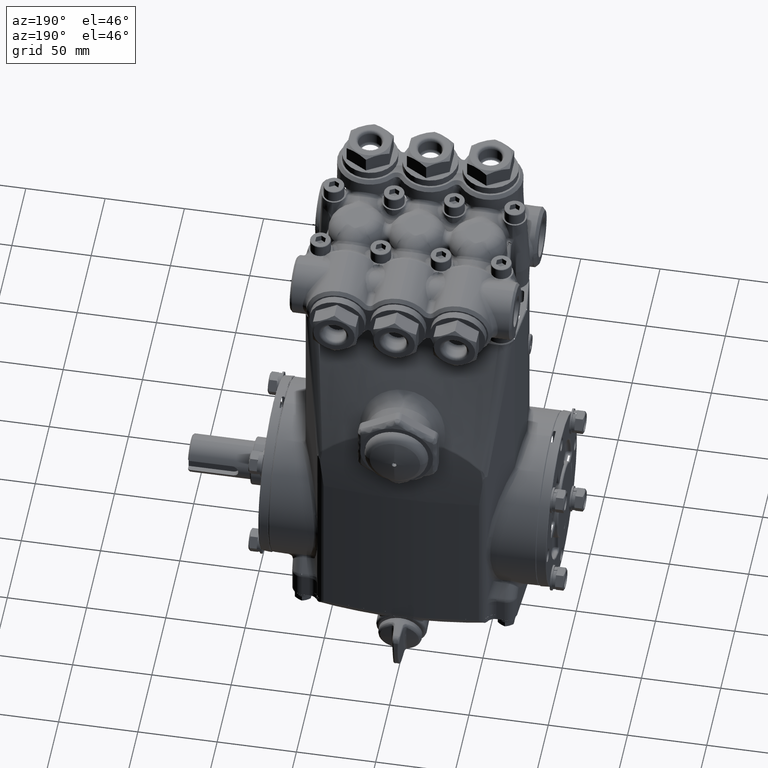
[diagram: clean part render]
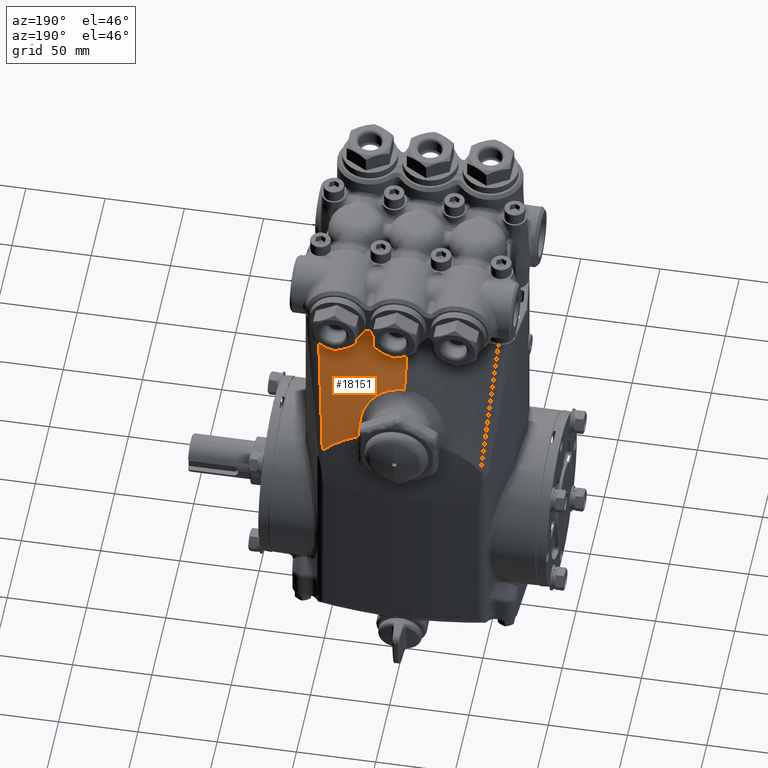
[diagram: same view with one face highlighted and labeled with its STEP entity id]
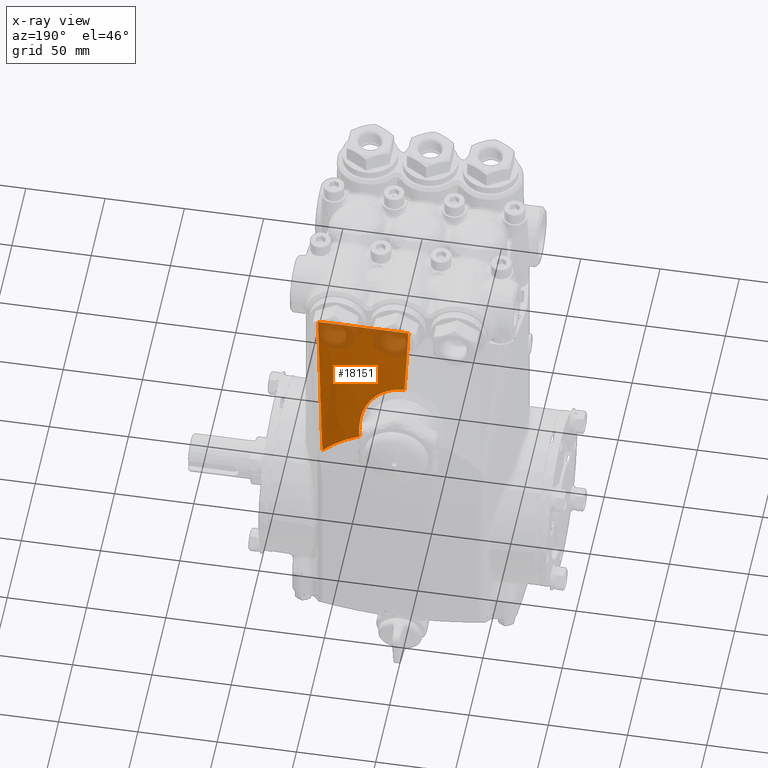
[diagram: x-ray of the same camera — body ghosted, the highlighted face saturated]
A machine part, auxiliary view. The second image highlights one B-rep face of the part: STEP entity #18151.
The next image is the same camera in x-ray: the body ghosted, the highlighted face saturated — about 22% of this face is hidden behind the body in this view.
In plain terms, the highlighted face is a freeform B-spline surface patch.
Its self-contained STEP definition (entity closure, byte-faithful):
#173 = EDGE_CURVE ( 'NONE', #83808, #99880, #31209, .T. ) ;
#1045 = CARTESIAN_POINT ( 'NONE',  ( 2.138791567245843517, 1.934550967561894375, 4.139253177447304033 ) ) ;
#2403 = CARTESIAN_POINT ( 'NONE',  ( 1.815914156972153304, 1.940961843331305614, 4.336021358452839536 ) ) ;
#2670 = ORIENTED_EDGE ( 'NONE', *, *, #104055, .F. ) ;
#3092 = CARTESIAN_POINT ( 'NONE',  ( 2.226762278537175899, 1.351072223210090240, 6.345969643013950723 ) ) ;
#3334 = CARTESIAN_POINT ( 'NONE',  ( 1.914390275436746114, 1.303141500361982841, 6.522115262681796644 ) ) ;
#3484 = CARTESIAN_POINT ( 'NONE',  ( 0.7046425184321145618, 1.920170747935553202, 4.813691399257461256 ) ) ;
#3773 = CARTESIAN_POINT ( 'NONE',  ( -0.4139447099412282283, 1.299212598425195875, 6.535433070866140781 ) ) ;
#4014 = CARTESIAN_POINT ( 'NONE',  ( 1.929086690002406623, 1.303150017702783936, 6.522054915109928963 ) ) ;
#4171 = CARTESIAN_POINT ( 'NONE',  ( 0.08132019185828821828, 1.843391827334499578, 5.083065750488912293 ) ) ;
#4470 = CARTESIAN_POINT ( 'NONE',  ( 1.413377725799104034, 1.623373408866208623, 5.537438881358075271 ) ) ;
#4718 = CARTESIAN_POINT ( 'NONE',  ( 2.011344609030261132, 1.303177107807405699, 6.521691956525321743 ) ) ;
#4878 = CARTESIAN_POINT ( 'NONE',  ( 0.6011664579266333686, 1.895645411747802767, 4.899716452204509132 ) ) ;
#5175 = CARTESIAN_POINT ( 'NONE',  ( 1.138347952338380820, 1.299212598425195875, 6.535433070866143446 ) ) ;
#5378 = CARTESIAN_POINT ( 'NONE',  ( 1.386629650403558456, 2.265946635969432688, 3.521905276535707507 ) ) ;
#5429 = CARTESIAN_POINT ( 'NONE',  ( 2.072183131936921274, 1.303234616926000733, 6.521305273683159598 ) ) ;
#5881 = CARTESIAN_POINT ( 'NONE',  ( -1.075040638229151746, 2.276030985658306971, 3.676614831474853240 ) ) ;
#6071 = B_SPLINE_CURVE_WITH_KNOTS ( 'NONE', 3,
 ( #77937, #98972, #120702, #24709 ),
 .UNSPECIFIED., .F., .F.,
 ( 4, 4 ),
 ( 0.000000000000000000, 1.000000000000000000 ),
 .UNSPECIFIED. ) ;
#6080 = CARTESIAN_POINT ( 'NONE',  ( 1.905459695143534526, 2.251777812233334952, 3.090971539333773332 ) ) ;
#6133 = CARTESIAN_POINT ( 'NONE',  ( 2.075517947301391608, 1.303234203366481436, 6.521297421899155289 ) ) ;
#6289 = CARTESIAN_POINT ( 'NONE',  ( 1.059611432877180404, 2.132919541077613612, 4.104215309753711516 ) ) ;
#6305 = VERTEX_POINT ( 'NONE', #114997 ) ;
#6584 = CARTESIAN_POINT ( 'NONE',  ( -1.514041149352872040, 2.268035144051591345, 3.427713295126958215 ) ) ;
#6781 = CARTESIAN_POINT ( 'NONE',  ( 1.838112334298227291, 2.254110649831492008, 3.160691993887410955 ) ) ;
#7982 = CARTESIAN_POINT ( 'NONE',  ( -2.064016187563357363, 1.936334572335544513, 4.193623449363257372 ) ) ;
#11581 = CARTESIAN_POINT ( 'NONE',  ( 1.987364774915985066, 2.192373398771772397, 3.229997992615773139 ) ) ;
#11597 = B_SPLINE_CURVE_WITH_KNOTS ( 'NONE', 3,
 ( #55663, #56344, #11581, #109599, #12275, #99093, #130664, #77381, #65506, #3092, #118791, #54308 ),
 .UNSPECIFIED., .F., .F.,
 ( 4, 2, 2, 2, 2, 4 ),
 ( 0.005111012483131041097, 0.09547011241999034392, 0.4258638922745208166, 0.7562576721290511506, 0.9214545620563164841, 0.9958867908275451653 ),
 .UNSPECIFIED. ) ;
#12275 = CARTESIAN_POINT ( 'NONE',  ( 2.056971949321643844, 1.955863575897020867, 4.116183297647427075 ) ) ;
#12475 = CARTESIAN_POINT ( 'NONE',  ( 7.856720868780860474E-16, 1.842770180353480391, 5.085202755651217821 ) ) ;
#12870 = ORIENTED_EDGE ( 'NONE', *, *, #173, .F. ) ;
#12947 = CARTESIAN_POINT ( 'NONE',  ( 1.740752549347811096, 2.261836465784360151, 3.236315502246188025 ) ) ;
#12994 = ORIENTED_EDGE ( 'NONE', *, *, #42766, .F. ) ;
#13146 = CARTESIAN_POINT ( 'NONE',  ( -6.747251032203251776E-16, 1.524112451085763542, 5.935392394274551897 ) ) ;
#13603 = CARTESIAN_POINT ( 'NONE',  ( 2.348620269737569544, 1.615989862535865962, 5.310154389002058828 ) ) ;
#13704 = EDGE_LOOP ( 'NONE', ( #81824, #109936, #32338, #111534, #12994, #2670, #12870 ) ) ;
#13852 = CARTESIAN_POINT ( 'NONE',  ( 1.874686454365268595, 1.303108475886013418, 6.522297875013515878 ) ) ;
#14286 = CARTESIAN_POINT ( 'NONE',  ( 1.558289455644661370, 1.945165731996254532, 4.465837177507690825 ) ) ;
#14536 = CARTESIAN_POINT ( 'NONE',  ( 1.988250157175251331, 1.303163174898845478, 6.521813249816738711 ) ) ;
#14690 = CARTESIAN_POINT ( 'NONE',  ( 7.856720868780860474E-16, 1.842770180353480391, 5.085202755651217821 ) ) ;
#14978 = CARTESIAN_POINT ( 'NONE',  ( 0.1996451555749676476, 2.283281142087087545, 3.903651472290499136 ) ) ;
#15221 = CARTESIAN_POINT ( 'NONE',  ( 2.040988433105608735, 1.303208087514445834, 6.521476013895274093 ) ) ;
#15378 = CARTESIAN_POINT ( 'NONE',  ( 0.5246777311897342644, 1.881737060599490086, 4.948639182549783300 ) ) ;
#15396 = EDGE_CURVE ( 'NONE', #117559, #108811, #11597, .T. ) ;
#15680 = CARTESIAN_POINT ( 'NONE',  ( -0.7065648037781333546, 1.953379148812216082, 4.721955145553740962 ) ) ;
#16076 = CARTESIAN_POINT ( 'NONE',  ( 0.9412549769743565609, 2.010370260216432836, 4.502105003687284501 ) ) ;
#16382 = CARTESIAN_POINT ( 'NONE',  ( -0.7154840230876414742, 1.626295873618706089, 5.628694108209940872 ) ) ;
#16577 = CARTESIAN_POINT ( 'NONE',  ( 1.130691403279651341, 2.270550212597886919, 3.664058202181445623 ) ) ;
#16794 = CARTESIAN_POINT ( 'NONE',  ( 0.9599590756061289198, 2.021880957268129997, 4.463231149671288200 ) ) ;
#17095 = CARTESIAN_POINT ( 'NONE',  ( -1.413596656458246281, 1.623367893248890415, 5.537266598726781730 ) ) ;
#17788 = CARTESIAN_POINT ( 'NONE',  ( -2.069723549706143917, 1.299212598425195875, 6.535433070866140781 ) ) ;
#17988 = CARTESIAN_POINT ( 'NONE',  ( 1.467571004497538523, 2.264214088644782574, 3.468564571426206555 ) ) ;
#18151 = ADVANCED_FACE ( 'NONE', ( #109586 ), #60251, .T. ) ;
#18565 = CARTESIAN_POINT ( 'NONE',  ( 0.5634469790333801464, 1.303876253747656699, 6.522993007173084834 ) ) ;
#22066 = CARTESIAN_POINT ( 'NONE',  ( 1.690339794217348590, 1.302815946655424995, 6.523803629161010420 ) ) ;
#22790 = CARTESIAN_POINT ( 'NONE',  ( 2.276695904676759863, 1.299212598425195875, 6.535433070866140781 ) ) ;
#23717 = CARTESIAN_POINT ( 'NONE',  ( 2.221572899584750349, 1.303234224250594986, 6.520944700123296300 ) ) ;
#24709 = CARTESIAN_POINT ( 'NONE',  ( 1.690339794217348590, 1.302815946655424995, 6.523803629161010420 ) ) ;
#24833 = CARTESIAN_POINT ( 'NONE',  ( 2.069723549706145693, 1.299212598425195875, 6.535433070866140781 ) ) ;
#25076 = CARTESIAN_POINT ( 'NONE',  ( 1.904906332796902468, 1.303136809128786489, 6.522154407171851354 ) ) ;
#25521 = CARTESIAN_POINT ( 'NONE',  ( 1.094475627111260341, 1.950449930780007168, 4.630335524700627481 ) ) ;
#25776 = CARTESIAN_POINT ( 'NONE',  ( 1.986261469908715327, 1.303164192265223731, 6.521821532394173282 ) ) ;
#26230 = CARTESIAN_POINT ( 'NONE',  ( 0.09980670523800924676, 1.955382665598911718, 4.784819064919673792 ) ) ;
#26628 = CARTESIAN_POINT ( 'NONE',  ( 0.2666601076433642858, 1.851523558427996097, 5.054693099136969181 ) ) ;
#26920 = CARTESIAN_POINT ( 'NONE',  ( -0.7948310577097567053, 2.279523450189995692, 3.785796457838987550 ) ) ;
#27617 = CARTESIAN_POINT ( 'NONE',  ( 0.2069723549706150856, 1.299212598425195875, 6.535433070866140781 ) ) ;
#28320 = CARTESIAN_POINT ( 'NONE',  ( 0.5979691708398126027, 2.281413911206460199, 3.845027360530513416 ) ) ;
#30387 = CARTESIAN_POINT ( 'NONE',  ( -2.170356046120057947, 1.617773585380370305, 5.364528260114698632 ) ) ;
#31209 = B_SPLINE_CURVE_WITH_KNOTS ( 'NONE', 3,
 ( #112442, #102630, #18565, #38888 ),
 .UNSPECIFIED., .F., .F.,
 ( 4, 4 ),
 ( 0.01406537931565059185, 0.05700002236171951980 ),
 .UNSPECIFIED. ) ;
#32338 = ORIENTED_EDGE ( 'NONE', *, *, #15396, .F. ) ;
#32622 = CARTESIAN_POINT ( 'NONE',  ( 2.078524289917963674, 2.249544390757206358, 2.859597025273892257 ) ) ;
#34666 = CARTESIAN_POINT ( 'NONE',  ( 1.814750563133107342, 2.259561088856864242, 3.166239998444151826 ) ) ;
#35574 = CARTESIAN_POINT ( 'NONE',  ( 1.979249540742124003, 1.303167198760140089, 6.521850426477739937 ) ) ;
#36021 = CARTESIAN_POINT ( 'NONE',  ( -1.017659377637137652, 1.625244951225160328, 5.595808111142073216 ) ) ;
#36263 = CARTESIAN_POINT ( 'NONE',  ( 2.073291619848125045, 1.303234372079689285, 6.521302652814378042 ) ) ;
#36718 = CARTESIAN_POINT ( 'NONE',  ( 0.6209170649118443963, 1.299212598425195875, 6.535433070866142558 ) ) ;
#36969 = CARTESIAN_POINT ( 'NONE',  ( 1.857470453640842400, 1.303069157038817760, 6.522404842360860933 ) ) ;
#37130 = CARTESIAN_POINT ( 'NONE',  ( 0.7980945044449194725, 1.947650998695895863, 4.717654648442444199 ) ) ;
#37428 = CARTESIAN_POINT ( 'NONE',  ( 0.2045299551720659303, 1.627235446312492950, 5.658172538007593566 ) ) ;
#37675 = CARTESIAN_POINT ( 'NONE',  ( 2.060574785541025911, 1.303222618714695358, 6.521350721251032212 ) ) ;
#37828 = CARTESIAN_POINT ( 'NONE',  ( 1.065664247758600913, 2.159866697530362867, 4.022029125482110778 ) ) ;
#38120 = CARTESIAN_POINT ( 'NONE',  ( -1.117245514301969278, 1.624818727502899574, 5.582493657735712489 ) ) ;
#38365 = CARTESIAN_POINT ( 'NONE',  ( 1.984310192827091646, 1.303165190867774381, 6.521829585147287389 ) ) ;
#38811 = CARTESIAN_POINT ( 'NONE',  ( 0.7899098052399405878, 2.279574444770267050, 3.787396209038501382 ) ) ;
#38888 = CARTESIAN_POINT ( 'NONE',  ( 0.000000000000000000, 1.303874827123127744, 6.522994084420179028 ) ) ;
#41577 = CARTESIAN_POINT ( 'NONE',  ( -1.903513742914309637, 1.939502949712582192, 4.290982414971016290 ) ) ;
#41908 = B_SPLINE_CURVE_WITH_KNOTS ( 'NONE', 3,
 ( #97922, #76214, #13146, #75536, #88085, #74848, #12475 ),
 .UNSPECIFIED., .F., .F.,
 ( 4, 3, 4 ),
 ( 0.0003374136303950777760, 0.02424589558524162941, 0.03933821924561142075 ),
 .UNSPECIFIED. ) ;
#42766 = EDGE_CURVE ( 'NONE', #70786, #6305, #48443, .T. ) ;
#45151 = CARTESIAN_POINT ( 'NONE',  ( 1.966237372220838386, 1.299212598425195875, 6.535433070866140781 ) ) ;
#45835 = CARTESIAN_POINT ( 'NONE',  ( 2.018096309787731801, 2.252220152130243402, 2.941163230737885659 ) ) ;
#46527 = CARTESIAN_POINT ( 'NONE',  ( -0.8168699658248899098, 1.625982882346795888, 5.618887533190423333 ) ) ;
#46765 = CARTESIAN_POINT ( 'NONE',  ( 2.188553502826026786, 1.303158118626795314, 6.521015341337152549 ) ) ;
#46904 = CARTESIAN_POINT ( 'NONE',  ( 7.856720868780860474E-16, 1.842770180353480391, 5.085202755651217821 ) ) ;
#47220 = CARTESIAN_POINT ( 'NONE',  ( 1.016220453720929395, 1.625264024435116639, 5.596403073865150013 ) ) ;
#47463 = CARTESIAN_POINT ( 'NONE',  ( 1.947003840846343259, 1.303163007286271657, 6.521982092662439889 ) ) ;
#47926 = CARTESIAN_POINT ( 'NONE',  ( -0.2069723549706137533, 1.299212598425195875, 6.535433070866140781 ) ) ;
#48443 = B_SPLINE_CURVE_WITH_KNOTS ( 'NONE', 3,
 ( #14690, #91047, #57426, #4171, #101557, #26628, #111355, #15378, #4878, #3484, #133119, #37130, #79831, #122603, #112061, #16076, #16794, #133815, #59523, #6289, #37828, #80532, #109974, #70033 ),
 .UNSPECIFIED., .F., .F.,
 ( 4, 2, 2, 2, 2, 2, 2, 2, 2, 2, 2, 4 ),
 ( 0.000000000000000000, 0.01562403962243399079, 0.08124910364760508374, 0.2124992316979472662, 0.3437493597482894625, 0.4093744237734605051, 0.4749994877986315478, 0.5406245518238025349, 0.6062496158489736331, 0.7374997438993158294, 0.8687498719496578037, 1.000000000000000000 ),
 .UNSPECIFIED. ) ;
#48623 = CARTESIAN_POINT ( 'NONE',  ( -0.2034956251185647269, 2.283458183139874809, 3.909217981057091507 ) ) ;
#48823 = CARTESIAN_POINT ( 'NONE',  ( 1.041533217244492660, 2.271803740172789077, 3.703202409397690520 ) ) ;
#48875 = CARTESIAN_POINT ( 'NONE',  ( 1.988858789484086342, 1.303162962733967589, 6.521810613207049911 ) ) ;
#49318 = CARTESIAN_POINT ( 'NONE',  ( -1.096143076265560623, 1.950424856580603272, 4.629554244605282420 ) ) ;
#50700 = CARTESIAN_POINT ( 'NONE',  ( -2.078524289917953460, 2.249544390757207690, 2.859597025273891369 ) ) ;
#54308 = CARTESIAN_POINT ( 'NONE',  ( 2.242889468066143088, 1.303183471566980778, 6.520931740362723161 ) ) ;
#55663 = CARTESIAN_POINT ( 'NONE',  ( 1.969283401333570938, 2.249277433038161078, 3.017030524756072474 ) ) ;
#56333 = CARTESIAN_POINT ( 'NONE',  ( 2.259486824703954788, 1.616881782993545125, 5.337343124156722851 ) ) ;
#56344 = CARTESIAN_POINT ( 'NONE',  ( 1.978388578950748711, 2.220830290808069041, 3.123495715211229484 ) ) ;
#57018 = CARTESIAN_POINT ( 'NONE',  ( -1.608532942960900547, 1.622153446967327772, 5.499526478953079334 ) ) ;
#57270 = CARTESIAN_POINT ( 'NONE',  ( 1.902730317229023305, 1.303135947009208762, 6.522163432569507258 ) ) ;
#57426 = CARTESIAN_POINT ( 'NONE',  ( 0.02254338807625001079, 1.842835449954973503, 5.084990788881945001 ) ) ;
#57715 = CARTESIAN_POINT ( 'NONE',  ( -0.7244032423971497048, 1.299212598425195875, 6.535433070866140781 ) ) ;
#57957 = CARTESIAN_POINT ( 'NONE',  ( 2.157974127490696503, 1.303170085031228220, 6.521101914974519076 ) ) ;
#58412 = CARTESIAN_POINT ( 'NONE',  ( 0.1034861774853078620, 1.299212598425195875, 6.535433070866140781 ) ) ;
#58652 = CARTESIAN_POINT ( 'NONE',  ( 2.109887356808207048, 1.303279563280243414, 6.521220493288224063 ) ) ;
#59109 = CARTESIAN_POINT ( 'NONE',  ( -0.9832545832052707047, 2.277309656825089235, 3.716558191693936308 ) ) ;
#59312 = CARTESIAN_POINT ( 'NONE',  ( 1.217594213962654992, 2.269128931642199642, 3.619967092695878907 ) ) ;
#59523 = CARTESIAN_POINT ( 'NONE',  ( 1.030928400658887245, 2.081659327104598667, 4.265729520778678285 ) ) ;
#59822 = CARTESIAN_POINT ( 'NONE',  ( -1.448806484794300076, 1.299212598425195875, 6.535433070866140781 ) ) ;
#60039 = B_SPLINE_CURVE_WITH_KNOTS ( 'NONE', 3,
 ( #48823, #16577, #59312, #5378, #17988, #81724, #102053, #6781, #6080, #91537 ),
 .UNSPECIFIED., .F., .F.,
 ( 4, 2, 2, 2, 4 ),
 ( 0.004531225126507739884, 0.01195000812040867937, 0.01936879111430962752, 0.02678757410821057394, 0.03420635710211152036 ),
 .UNSPECIFIED. ) ;
#60251 = B_SPLINE_SURFACE_WITH_KNOTS ( 'NONE', 3, 3, ( 
 ( #32622, #118779, #13603, #119463 ),
 ( #45835, #1045, #56333, #78048 ),
 ( #75325, #98399, #86523, #22790 ),
 ( #34666, #65497, #108911, #24833 ),
 ( #12947, #2403, #120813, #45151 ),
 ( #110254, #14286, #99083, #100467 ),
 ( #89241, #101159, #4470, #132716 ),
 ( #121497, #25521, #122888, #5175 ),
 ( #79432, #134795, #47220, #132011 ),
 ( #38811, #99780, #89941, #68226 ),
 ( #28320, #92027, #91335, #36718 ),
 ( #110949, #90634, #133409, #122208 ),
 ( #14978, #123592, #37428, #27617 ),
 ( #81524, #26230, #71020, #58412 ),
 ( #48623, #102550, #68919, #47926 ),
 ( #70330, #112363, #111653, #3773 ),
 ( #80123, #15680, #16382, #57715 ),
 ( #26920, #124290, #46527, #69632 ),
 ( #59109, #101858, #36021, #134108 ),
 ( #5881, #49318, #38120, #78739 ),
 ( #80827, #113066, #17095, #59822 ),
 ( #6584, #113772, #57018, #136867 ),
 ( #94108, #41577, #84289, #17788 ),
 ( #106011, #7982, #30387, #115864 ),
 ( #50700, #124978, #84987, #73785 ) ),
 .UNSPECIFIED., .F., .F., .F.,
 ( 4, 2, 2, 2, 2, 1, 2, 2, 2, 2, 2, 2, 4 ),
 ( 4, 4 ),
 ( 0.000000000000000000, 0.06249999999999977796, 0.1249999999999997780, 0.2499999999999997780, 0.3124999999999997780, 0.3749999999999997780, 0.4374999999999998890, 0.4999999999999998890, 0.6249999999999998890, 0.6874999999999997780, 0.7499999999999997780, 0.8749999999999998890, 1.000000000000000000 ),
 ( 0.000000000000000000, 1.000000000000000000 ),
 .UNSPECIFIED. ) ;
#65497 = CARTESIAN_POINT ( 'NONE',  ( 1.899741558657453311, 1.939444925379641971, 4.289304355918147849 ) ) ;
#65506 = CARTESIAN_POINT ( 'NONE',  ( 2.202150233065117924, 1.428197325380847538, 6.064137633037693931 ) ) ;
#67096 = CARTESIAN_POINT ( 'NONE',  ( 2.140198437375403717, 1.303302065660231435, 6.521151207910685699 ) ) ;
#67776 = CARTESIAN_POINT ( 'NONE',  ( 2.027258736567554731, 1.303197684794334732, 6.521576645671452788 ) ) ;
#68226 = CARTESIAN_POINT ( 'NONE',  ( 0.8278894198824591211, 1.299212598425195875, 6.535433070866143446 ) ) ;
#68478 = CARTESIAN_POINT ( 'NONE',  ( 1.751689739780477817, 1.302976663906070698, 6.523246064949240086 ) ) ;
#68919 = CARTESIAN_POINT ( 'NONE',  ( -0.2058134450199307908, 1.627294459996755371, 5.660028040929791615 ) ) ;
#69168 = CARTESIAN_POINT ( 'NONE',  ( 2.201288779018358177, 1.303226110760312695, 6.520983324525448488 ) ) ;
#69632 = CARTESIAN_POINT ( 'NONE',  ( -0.8278894198824566786, 1.299212598425195875, 6.535433070866140781 ) ) ;
#69881 = CARTESIAN_POINT ( 'NONE',  ( 2.069974763193493494, 1.303234748418971467, 6.521310903025320016 ) ) ;
#70033 = CARTESIAN_POINT ( 'NONE',  ( 1.041533217244492660, 2.271803740172789077, 3.703202409397690520 ) ) ;
#70330 = CARTESIAN_POINT ( 'NONE',  ( -0.4024140580146031154, 2.282714137246169894, 3.885816525513271724 ) ) ;
#70786 = VERTEX_POINT ( 'NONE', #46904 ) ;
#71020 = CARTESIAN_POINT ( 'NONE',  ( 0.1016464413616585544, 1.627297632012053574, 5.660126067892908175 ) ) ;
#71554 = EDGE_CURVE ( 'NONE', #87747, #83808, #6071, .T. ) ;
#73785 = CARTESIAN_POINT ( 'NONE',  ( -2.483668259647373144, 1.299212598425195875, 6.535433070866140781 ) ) ;
#74848 = CARTESIAN_POINT ( 'NONE',  ( -7.840713946942983381E-16, 1.773257215420733113, 5.270665689158987810 ) ) ;
#75325 = CARTESIAN_POINT ( 'NONE',  ( 1.953241251208090556, 2.254757105907042813, 3.018792012192400342 ) ) ;
#75536 = CARTESIAN_POINT ( 'NONE',  ( -6.747251032203251776E-16, 1.634231296623841034, 5.641591560323128363 ) ) ;
#76214 = CARTESIAN_POINT ( 'NONE',  ( -4.905913607710590776E-16, 1.413993621865241579, 6.229193234341924956 ) ) ;
#76933 = CARTESIAN_POINT ( 'NONE',  ( 2.239881829340187203, 1.303232487421861485, 6.520879784589456385 ) ) ;
#77381 = CARTESIAN_POINT ( 'NONE',  ( 2.186378929579909869, 1.481371582545127685, 5.869664288253999551 ) ) ;
#77937 = CARTESIAN_POINT ( 'NONE',  ( 1.695594360879107088, 1.302839862579967312, 6.523765088554132063 ) ) ;
#78048 = CARTESIAN_POINT ( 'NONE',  ( 2.380182082162066504, 1.299212598425195875, 6.535433070866140781 ) ) ;
#78291 = CARTESIAN_POINT ( 'NONE',  ( 2.044635832022915878, 1.303205283789568014, 6.521450304741733817 ) ) ;
#78739 = CARTESIAN_POINT ( 'NONE',  ( -1.138347952338378155, 1.299212598425195875, 6.535433070866140781 ) ) ;
#78983 = CARTESIAN_POINT ( 'NONE',  ( 1.999346858728849208, 1.303160528041504174, 6.521763919417264965 ) ) ;
#79432 = CARTESIAN_POINT ( 'NONE',  ( 0.9789378114566406053, 2.277366876454958611, 3.718343079863162703 ) ) ;
#79831 = CARTESIAN_POINT ( 'NONE',  ( 0.8258493691338274489, 1.957406070253898234, 4.683738946589278029 ) ) ;
#80123 = CARTESIAN_POINT ( 'NONE',  ( -0.6976455844686251240, 2.280462424005726074, 3.815216182897540609 ) ) ;
#80373 = CARTESIAN_POINT ( 'NONE',  ( 2.033134597768900154, 1.303204590899394777, 6.521533020874960229 ) ) ;
#80532 = CARTESIAN_POINT ( 'NONE',  ( 1.063363513276622374, 2.214500234496790121, 3.861862252804268092 ) ) ;
#80827 = CARTESIAN_POINT ( 'NONE',  ( -1.343176999786138914, 2.271678482896280382, 3.540933654448064516 ) ) ;
#81524 = CARTESIAN_POINT ( 'NONE',  ( 0.09796696911435995303, 2.283467699185769195, 3.909512061946438966 ) ) ;
#81724 = CARTESIAN_POINT ( 'NONE',  ( 1.622572283600502985, 2.260474850262625068, 3.353590572003123604 ) ) ;
#81824 = ORIENTED_EDGE ( 'NONE', *, *, #71554, .F. ) ;
#83808 = VERTEX_POINT ( 'NONE', #22066 ) ;
#84289 = CARTESIAN_POINT ( 'NONE',  ( -1.986618646310226444, 1.619357774068889144, 5.413207742918578980 ) ) ;
#84987 = CARTESIAN_POINT ( 'NONE',  ( -2.348620269737566879, 1.615989862535866628, 5.310154389002057052 ) ) ;
#86523 = CARTESIAN_POINT ( 'NONE',  ( 2.168877686853869946, 1.617727434252478336, 5.363219384641560339 ) ) ;
#87455 = CARTESIAN_POINT ( 'NONE',  ( 2.242889468066143088, 1.303183471566980778, 6.520931740362723161 ) ) ;
#87747 = VERTEX_POINT ( 'NONE', #120784 ) ;
#88085 = CARTESIAN_POINT ( 'NONE',  ( -6.747251032203251776E-16, 1.703744252783319535, 5.456128623527068733 ) ) ;
#88801 = CARTESIAN_POINT ( 'NONE',  ( 1.909998950782521021, 1.303139110753065877, 6.522133340704889370 ) ) ;
#89241 = CARTESIAN_POINT ( 'NONE',  ( 1.342520207808706623, 2.271695029748234784, 3.541450502341939810 ) ) ;
#89297 = CARTESIAN_POINT ( 'NONE',  ( 1.969283401333570938, 2.249277433038161078, 3.017030524756072474 ) ) ;
#89481 = CARTESIAN_POINT ( 'NONE',  ( 1.799255493689533081, 1.302983911841779641, 6.522827809169941204 ) ) ;
#89941 = CARTESIAN_POINT ( 'NONE',  ( 0.8152295483349530913, 1.625999880540219822, 5.619420783590262758 ) ) ;
#90186 = CARTESIAN_POINT ( 'NONE',  ( 1.901496009660780251, 1.303135482113747967, 6.522168559258123999 ) ) ;
#90634 = CARTESIAN_POINT ( 'NONE',  ( 0.4048367846522590296, 1.954758838218616512, 4.765228578391724312 ) ) ;
#91047 = CARTESIAN_POINT ( 'NONE',  ( 0.01126117975408691581, 1.842779244380275960, 5.085181818319735925 ) ) ;
#91335 = CARTESIAN_POINT ( 'NONE',  ( 0.6132677668878337984, 1.626613036018950798, 5.638631167420932400 ) ) ;
#91537 = CARTESIAN_POINT ( 'NONE',  ( 1.969283401333570938, 2.249277433038161078, 3.017030524756072474 ) ) ;
#91589 = CARTESIAN_POINT ( 'NONE',  ( 1.987042370998739704, 1.303163774294473276, 6.521818308296422728 ) ) ;
#92027 = CARTESIAN_POINT ( 'NONE',  ( 0.6056184688638230895, 1.954013473612705720, 4.741829263975723130 ) ) ;
#94108 = CARTESIAN_POINT ( 'NONE',  ( -1.820408839518392607, 2.259648125356275461, 3.168757087023454488 ) ) ;
#97922 = CARTESIAN_POINT ( 'NONE',  ( 0.000000000000000000, 1.303874827123127744, 6.522994084420179028 ) ) ;
#98399 = CARTESIAN_POINT ( 'NONE',  ( 2.061059469030980029, 1.936242270079760575, 4.191005698416980785 ) ) ;
#98972 = CARTESIAN_POINT ( 'NONE',  ( 1.693842737036414636, 1.302831521494814959, 6.523781886629329563 ) ) ;
#99083 = CARTESIAN_POINT ( 'NONE',  ( 1.607034147704789140, 1.622189165210725204, 5.500635124186917579 ) ) ;
#99093 = CARTESIAN_POINT ( 'NONE',  ( 2.113561063574255883, 1.746169220545683132, 4.896017564383725151 ) ) ;
#99157 = CARTESIAN_POINT ( 'NONE',  ( 2.242889468066143088, 1.303183471566980778, 6.520931740362723161 ) ) ;
#99340 = CARTESIAN_POINT ( 'NONE',  ( 2.067713773536836275, 1.303232507928671069, 6.521319087892405442 ) ) ;
#99780 = CARTESIAN_POINT ( 'NONE',  ( 0.8025696767874468396, 1.952787162655243547, 4.703408496314382070 ) ) ;
#99880 = VERTEX_POINT ( 'NONE', #136415 ) ;
#100021 = CARTESIAN_POINT ( 'NONE',  ( 1.897358883726087297, 1.303133664640040656, 6.522186005173150392 ) ) ;
#100467 = CARTESIAN_POINT ( 'NONE',  ( 1.655778839764916688, 1.299212598425195875, 6.535433070866143446 ) ) ;
#100701 = CARTESIAN_POINT ( 'NONE',  ( 2.028989630829761026, 1.303200078861307620, 6.521563763278691361 ) ) ;
#101159 = CARTESIAN_POINT ( 'NONE',  ( 1.377948966803905329, 1.947534219307221592, 4.539444691850007096 ) ) ;
#101401 = CARTESIAN_POINT ( 'NONE',  ( 1.901061466535645561, 1.303135301337335239, 6.522170381834790476 ) ) ;
#101557 = CARTESIAN_POINT ( 'NONE',  ( 0.1283519674964979096, 1.844774695883454996, 5.078249926902880240 ) ) ;
#101858 = CARTESIAN_POINT ( 'NONE',  ( -1.000456980421204012, 1.951277304025125003, 4.656183151418004762 ) ) ;
#102053 = CARTESIAN_POINT ( 'NONE',  ( 1.696676590981896160, 2.258456798862484849, 3.292011194069374813 ) ) ;
#102106 = CARTESIAN_POINT ( 'NONE',  ( 2.072174660885754083, 1.303234615496997817, 6.521305289832583618 ) ) ;
#102550 = CARTESIAN_POINT ( 'NONE',  ( -0.2046545350692477727, 1.955376321568314868, 4.784623010993441561 ) ) ;
#102630 = CARTESIAN_POINT ( 'NONE',  ( 1.126893372803539961, 1.303347117195267080, 6.523392559263681889 ) ) ;
#103261 = EDGE_CURVE ( 'NONE', #108811, #87747, #113887, .T. ) ;
#104055 = EDGE_CURVE ( 'NONE', #99880, #70786, #41908, .T. ) ;
#106011 = CARTESIAN_POINT ( 'NONE',  ( -1.957676329006656779, 2.254895559290718943, 3.022718638611816555 ) ) ;
#108811 = VERTEX_POINT ( 'NONE', #99157 ) ;
#108911 = CARTESIAN_POINT ( 'NONE',  ( 1.984732554181799724, 1.619328761902418812, 5.412368713392144315 ) ) ;
#109586 = FACE_OUTER_BOUND ( 'NONE', #13704, .T. ) ;
#109599 = CARTESIAN_POINT ( 'NONE',  ( 2.027881314845334959, 2.059957115943923167, 3.726161280968987910 ) ) ;
#109831 = CARTESIAN_POINT ( 'NONE',  ( 2.099168214491805795, 1.303256928644436430, 6.521243807810604309 ) ) ;
#109936 = ORIENTED_EDGE ( 'NONE', *, *, #103261, .F. ) ;
#109974 = CARTESIAN_POINT ( 'NONE',  ( 1.055392690295886338, 2.242481657352550783, 3.782843497607218275 ) ) ;
#110254 = CARTESIAN_POINT ( 'NONE',  ( 1.509544763584533822, 2.268142298781783861, 3.431039230828464071 ) ) ;
#110506 = CARTESIAN_POINT ( 'NONE',  ( 2.080659740513781220, 1.303235821135962036, 6.521285500797815438 ) ) ;
#110949 = CARTESIAN_POINT ( 'NONE',  ( 0.4002828220077736532, 2.282531958115326720, 3.880126332154517410 ) ) ;
#111201 = CARTESIAN_POINT ( 'NONE',  ( 2.035144811830733147, 1.303206034369886801, 6.521518285628962630 ) ) ;
#111355 = CARTESIAN_POINT ( 'NONE',  ( 0.3561935387988385271, 1.859520074323178340, 5.026694214149352469 ) ) ;
#111416 = EDGE_CURVE ( 'NONE', #6305, #117559, #60039, .T. ) ;
#111534 = ORIENTED_EDGE ( 'NONE', *, *, #111416, .F. ) ;
#111653 = CARTESIAN_POINT ( 'NONE',  ( -0.4101011592990198573, 1.627046444698853955, 5.652227555748518206 ) ) ;
#112061 = CARTESIAN_POINT ( 'NONE',  ( 0.8996691366137743451, 1.988341560970584343, 4.577088649646758434 ) ) ;
#112363 = CARTESIAN_POINT ( 'NONE',  ( -0.4062576086568114864, 1.954880290972512036, 4.769022040630894743 ) ) ;
#112442 = CARTESIAN_POINT ( 'NONE',  ( 1.690339794217348590, 1.302815946655424995, 6.523803629161010420 ) ) ;
#112611 = CARTESIAN_POINT ( 'NONE',  ( 2.054809312129912691, 1.303210517006797797, 6.521383117495583193 ) ) ;
#113066 = CARTESIAN_POINT ( 'NONE',  ( -1.378386828122192709, 1.947523188072585176, 4.539100126587422679 ) ) ;
#113772 = CARTESIAN_POINT ( 'NONE',  ( -1.561287046156886182, 1.945094295509459670, 4.463619887040017886 ) ) ;
#113887 = B_SPLINE_CURVE_WITH_KNOTS ( 'NONE', 3,
 ( #87455, #130222, #76933, #119707, #23717, #69168, #46765, #57957, #67096, #58652, #109831, #121751, #110506, #6133, #36263, #102106, #5429, #134356, #69881, #99340, #37675, #112611, #78291, #15221, #111201, #80373, #100701, #67776, #4718, #78983, #48875, #14536, #132259, #91589, #25776, #38365, #35574, #121062, #47463, #4014, #3334, #88801, #25076, #57270, #132965, #90186, #101401, #100021, #123134, #13852, #36969, #89481, #68478, #122453 ),
 .UNSPECIFIED., .F., .F.,
 ( 4, 2, 2, 2, 2, 2, 1, 1, 2, 2, 1, 2, 2, 2, 2, 2, 2, 2, 2, 1, 1, 1, 1, 2, 1, 1, 2, 2, 1, 2, 2, 4 ),
 ( 0.000000000000000000, 0.02647470470202532497, 0.05294940940405064994, 0.07942411410607598532, 0.1058988188081012999, 0.1191361711591139572, 0.1224455092468668960, 0.1241001782907435319, 0.1249275128126819817, 0.1253411800736512205, 0.1257548473346204732, 0.1323735235101290986, 0.1456108758611471266, 0.1522295520366563903, 0.1555388901244110222, 0.1588482282121656819, 0.1853229329142043746, 0.1869776019580822457, 0.1878049364800208065, 0.1886322710019593951, 0.1919416090897148042, 0.1985602852652250672, 0.2117976376162449825, 0.2382723423182853961, 0.2448910184937958257, 0.2482003565815507351, 0.2498550256254281621, 0.2506823601473672225, 0.2515096946693062829, 0.2647470470203236448, 0.3176964564243930922, 0.4235952752325327642 ),
 .UNSPECIFIED. ) ;
#114997 = CARTESIAN_POINT ( 'NONE',  ( 1.041533217244492660, 2.271803740172789077, 3.703202409397690520 ) ) ;
#115864 = CARTESIAN_POINT ( 'NONE',  ( -2.276695904676758531, 1.299212598425195875, 6.535433070866140781 ) ) ;
#117559 = VERTEX_POINT ( 'NONE', #89297 ) ;
#118779 = CARTESIAN_POINT ( 'NONE',  ( 2.213572279827766831, 1.932767126646536271, 4.084875707137975986 ) ) ;
#118791 = CARTESIAN_POINT ( 'NONE',  ( 2.234738040199931053, 1.327124236712275307, 6.433462721648049332 ) ) ;
#119463 = CARTESIAN_POINT ( 'NONE',  ( 2.483668259647373144, 1.299212598425195875, 6.535433070866140781 ) ) ;
#119707 = CARTESIAN_POINT ( 'NONE',  ( 2.229281494804826735, 1.303247016684745407, 6.520924998795262439 ) ) ;
#120702 = CARTESIAN_POINT ( 'NONE',  ( 1.692091245206820416, 1.302820820105227151, 6.523789967270446688 ) ) ;
#120784 = CARTESIAN_POINT ( 'NONE',  ( 1.695594360879107088, 1.302839862579967312, 6.523765088554132063 ) ) ;
#120813 = CARTESIAN_POINT ( 'NONE',  ( 1.891075764596496178, 1.620087220878250633, 5.435727214659490159 ) ) ;
#121062 = CARTESIAN_POINT ( 'NONE',  ( 1.968414854395797331, 1.303168761470663961, 6.521894851845954300 ) ) ;
#121497 = CARTESIAN_POINT ( 'NONE',  ( 1.072539464497699990, 2.276068596957412815, 3.677786751617869054 ) ) ;
#121751 = CARTESIAN_POINT ( 'NONE',  ( 2.084976725295206279, 1.303239939946998049, 6.521275712041601835 ) ) ;
#122208 = CARTESIAN_POINT ( 'NONE',  ( 0.4139447099412297271, 1.299212598425195875, 6.535433070866140781 ) ) ;
#122453 = CARTESIAN_POINT ( 'NONE',  ( 1.695594360879107088, 1.302839862579967312, 6.523765088554132063 ) ) ;
#122603 = CARTESIAN_POINT ( 'NONE',  ( 0.8766390989175123494, 1.977750917328215952, 4.613455888628068102 ) ) ;
#122888 = CARTESIAN_POINT ( 'NONE',  ( 1.116411789724820469, 1.624831264602601522, 5.582884297783385463 ) ) ;
#123134 = CARTESIAN_POINT ( 'NONE',  ( 1.893503874094284001, 1.303130329138160626, 6.522203862721882572 ) ) ;
#123592 = CARTESIAN_POINT ( 'NONE',  ( 0.2020875553735168029, 1.955258294199790248, 4.780912005149046351 ) ) ;
#124290 = CARTESIAN_POINT ( 'NONE',  ( -0.8058505117673232521, 1.952753166268395901, 4.702341995514705886 ) ) ;
#124978 = CARTESIAN_POINT ( 'NONE',  ( -2.213572279827760170, 1.932767126646536937, 4.084875707137974210 ) ) ;
#130222 = CARTESIAN_POINT ( 'NONE',  ( 2.242680761238653897, 1.303200532984488680, 6.520862442825845484 ) ) ;
#130664 = CARTESIAN_POINT ( 'NONE',  ( 2.141102833431372421, 1.640556580735810011, 5.285820039345583865 ) ) ;
#132011 = CARTESIAN_POINT ( 'NONE',  ( 1.034861774853073735, 1.299212598425195875, 6.535433070866143446 ) ) ;
#132259 = CARTESIAN_POINT ( 'NONE',  ( 1.987349673437283748, 1.303163600215905049, 6.521817040169984203 ) ) ;
#132716 = CARTESIAN_POINT ( 'NONE',  ( 1.448806484794302518, 1.299212598425195875, 6.535433070866143446 ) ) ;
#132965 = CARTESIAN_POINT ( 'NONE',  ( 1.901643396892752635, 1.303135538320347120, 6.522167944932625971 ) ) ;
#133119 = CARTESIAN_POINT ( 'NONE',  ( 0.7374814470067786454, 1.929022283301832230, 4.782671342254898761 ) ) ;
#133409 = CARTESIAN_POINT ( 'NONE',  ( 0.4093907472967443506, 1.626985718321906083, 5.650330824628932547 ) ) ;
#133815 = CARTESIAN_POINT ( 'NONE',  ( 1.008514567478465462, 2.057192290731933770, 4.345443352723635577 ) ) ;
#134108 = CARTESIAN_POINT ( 'NONE',  ( -1.034861774853070848, 1.299212598425195875, 6.535433070866140781 ) ) ;
#134356 = CARTESIAN_POINT ( 'NONE',  ( 2.071952426533218983, 1.303234645099751621, 6.521305846859616118 ) ) ;
#134795 = CARTESIAN_POINT ( 'NONE',  ( 0.9975791325887850558, 1.951315450445037403, 4.657373076864156580 ) ) ;
#136415 = CARTESIAN_POINT ( 'NONE',  ( 0.000000000000000000, 1.303874827123127744, 6.522994084420179028 ) ) ;
#136867 = CARTESIAN_POINT ( 'NONE',  ( -1.655778839764914689, 1.299212598425195875, 6.535433070866140781 ) ) ;